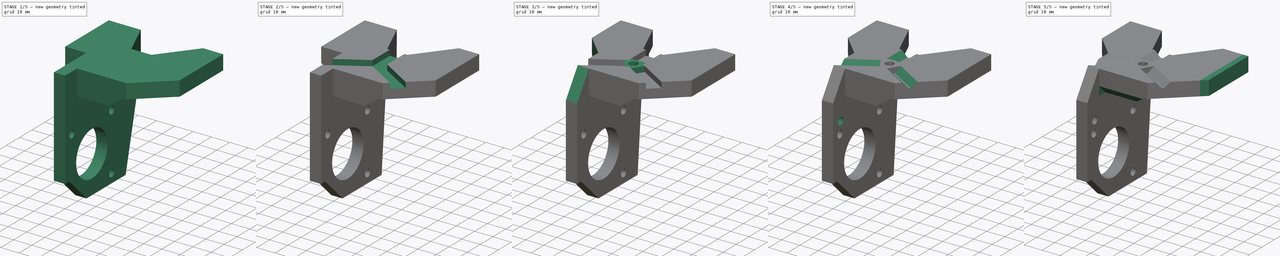
[diagram: build sequence overview — one tinted view per stage of 5, left to right]
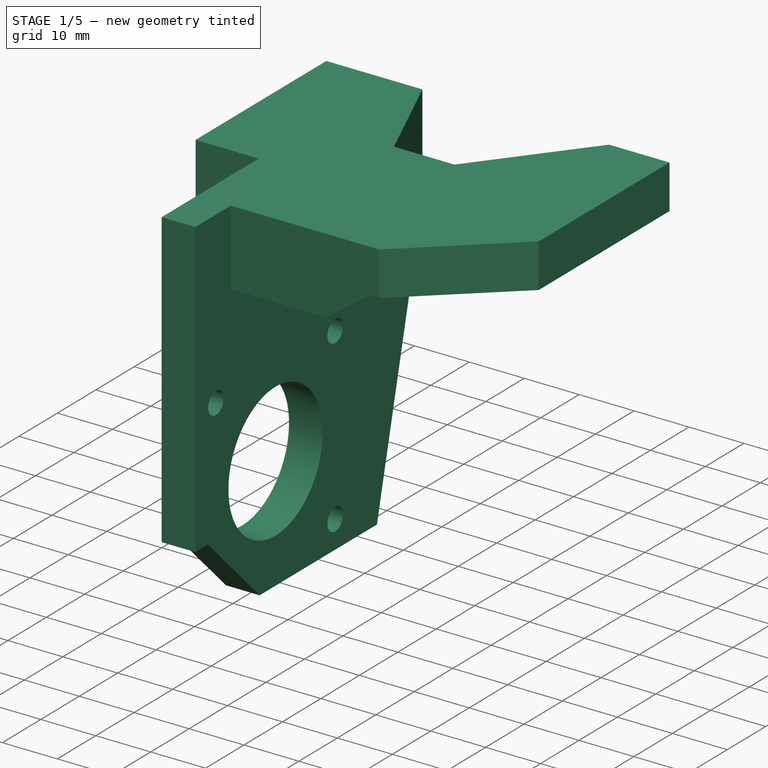
[diagram: stage 1 of 5 — iso view after this stage's code; geometry added in this stage tinted green]
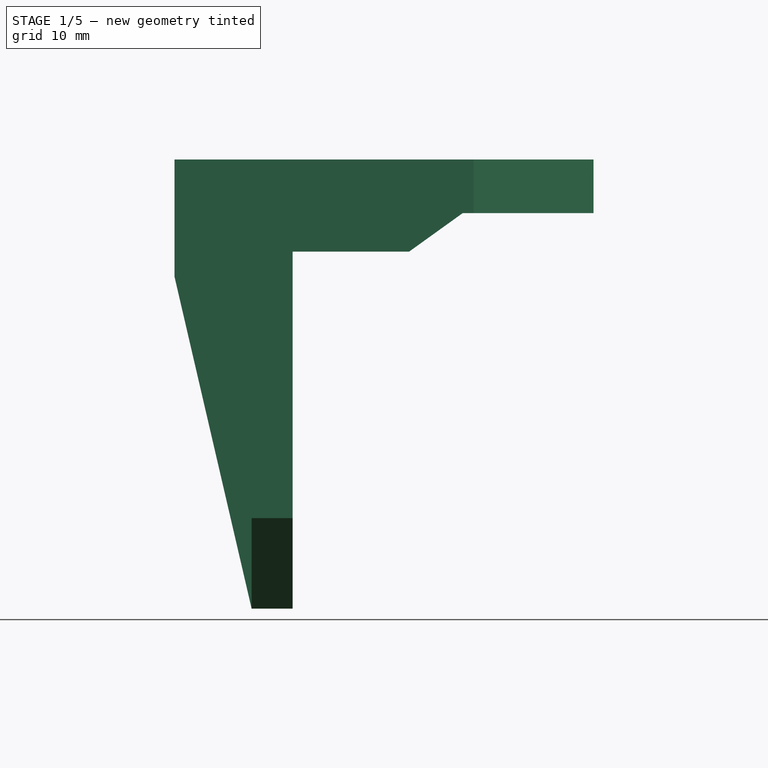
[diagram: stage 1 of 5 — front view after this stage's code; geometry added in this stage tinted green]
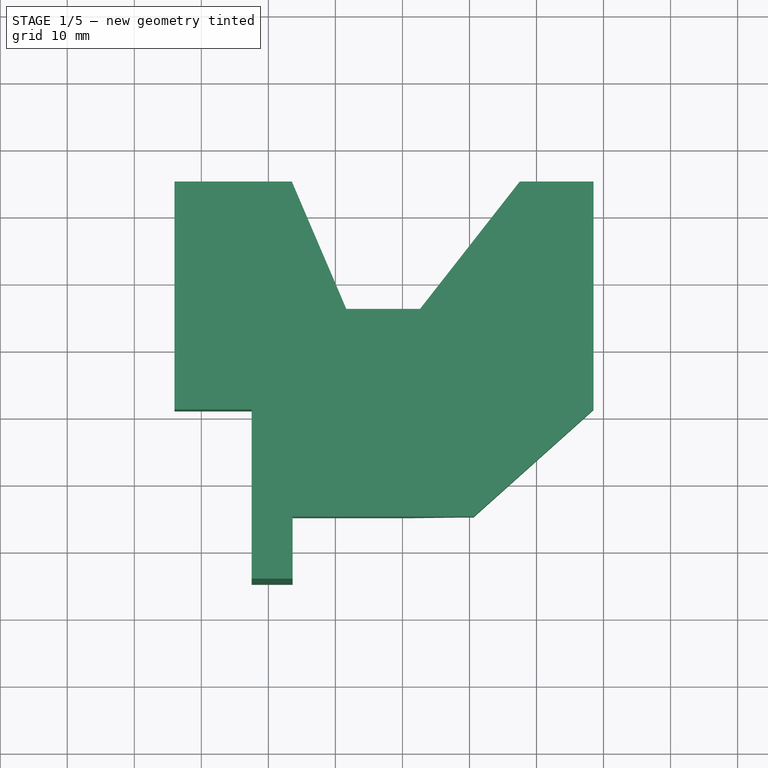
[diagram: stage 1 of 5 — top view after this stage's code; geometry added in this stage tinted green]
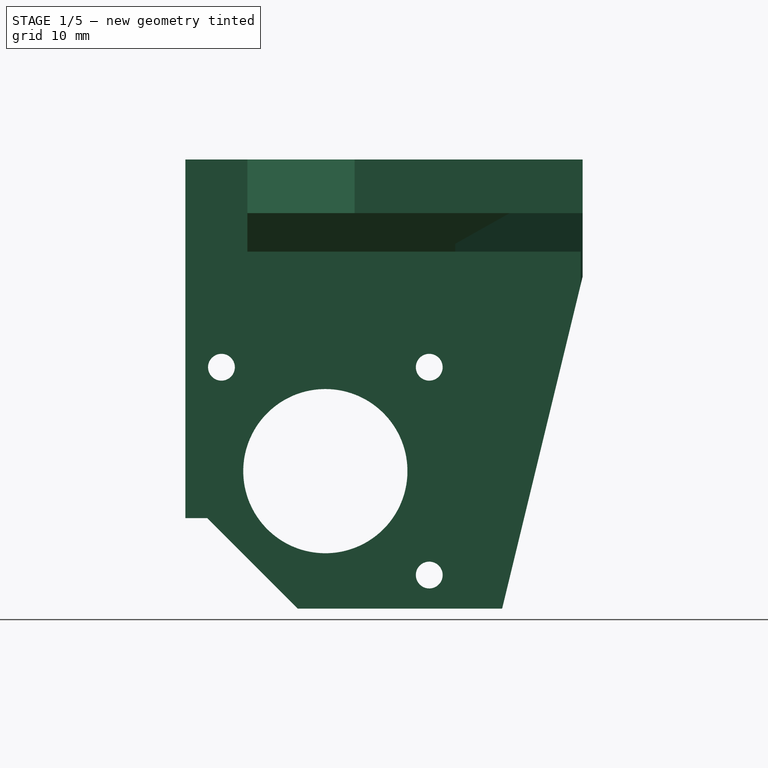
[diagram: stage 1 of 5 — right view after this stage's code; geometry added in this stage tinted green]
FCSTD DOCUMENT  (FreeCAD 0.17R11850 (Git))
Label: Beefy_extruder_mount_v2.2
License: All rights reserved
LicenseURL: http://en.wikipedia.org/wiki/All_rights_reserved
objects: Sketcher::SketchObject×15, PartDesign::Pocket×12, PartDesign::Pad×3, PartDesign::Chamfer×3, PartDesign::Fillet×3, PartDesign::Body×1, Part::Feature×1
note: 53 computed .brp shape members not serialized (recipe doc carries the construction recipe); baked Part::Feature solids carry a one-line shape summary decoded from their .brp

FEATURE [Sketcher::SketchObject] Sketch
  MapMode = 5
  Support = -> [XY_Plane]
  sketch-geometry (13):
    g0: LineSegment StartX=6 StartY=-25.75 StartZ=0 EndX=23.5 EndY=-25.75 EndZ=0
    g1: LineSegment StartX=23.5 StartY=-25.75 StartZ=0 EndX=31.625 EndY=-44.75 EndZ=0
    g2: LineSegment StartX=31.625 StartY=-44.75 StartZ=0 EndX=42.625 EndY=-44.75 EndZ=0
    g3: LineSegment StartX=42.625 StartY=-44.75 StartZ=0 EndX=57.5 EndY=-25.75 EndZ=0
    g4: LineSegment StartX=57.5 StartY=-25.75 StartZ=0 EndX=68.5 EndY=-25.75 EndZ=0
    g5: LineSegment StartX=68.5 StartY=-25.75 StartZ=0 EndX=68.5 EndY=-59.75 EndZ=0
    g6: LineSegment StartX=68.5 StartY=-59.75 StartZ=0 EndX=50.625 EndY=-75.75 EndZ=0
    g7: LineSegment StartX=50.625 StartY=-75.75 StartZ=0 EndX=23.625 EndY=-75.75 EndZ=0
    g8: LineSegment StartX=6 StartY=-59.75 StartZ=0 EndX=6 EndY=-25.75 EndZ=0
    g9: LineSegment StartX=17.5 StartY=-59.75 StartZ=0 EndX=6 EndY=-59.75 EndZ=0
    g10: LineSegment StartX=23.625 StartY=-75.75 StartZ=0 EndX=23.625 EndY=-85 EndZ=0
    g11: LineSegment StartX=23.625 StartY=-85 StartZ=0 EndX=17.5 EndY=-85 EndZ=0
    g12: LineSegment StartX=17.5 StartY=-85 StartZ=0 EndX=17.5 EndY=-59.75 EndZ=0
  constraints (39):
    c: Horizontal(g0)
    c: Coincident(g0,g1)
    c: Coincident(g1,g2)
    c: Horizontal(g2)
    c: Coincident(g2,g3)
    c: Coincident(g3,g4)
    c: Horizontal(g4)
    c: Coincident(g4,g5)
    c: Vertical(g5)
    c: Coincident(g5,g6)
    c: Coincident(g6,g7)
    c: Horizontal(g7)
    c: Vertical(g8)
    c: Coincident(g0,g8)
    c: DistanceX(g-1,g0) = 6
    c: DistanceY(g0,g-1) = 25.75
    c: DistanceX(g0,g0) = 17.5
    c: DistanceY(g0,g3) = 0
    c: DistanceX(g0,g3) = 34
    c: DistanceX(g2,g2) = 11
    c: DistanceY(g3,g3) = 19
    c: DistanceX(g2,g6) = 8
    c: DistanceX(g7,g1) = 8
    c: Equal(g5,g8)
    c: DistanceX(g4,g4) = 11
    c: Coincident(g8,g9)
    c: Horizontal(g9)
    c: DistanceY(g6,g6) = 16
    c: DistanceY(g5,g5) = 34
    c: Coincident(g7,g10)
    c: Coincident(g10,g11)
    c: Horizontal(g11)
    c: Coincident(g11,g12)
    c: Vertical(g12)
    c: Coincident(g12,g9)
    c: DistanceY(g10,g10) = 9.25
    c: DistanceX(g11,g11) = 6.125
    c: DistanceX(g9,g9) = 11.5
    c: Vertical(g10)
FEATURE [PartDesign::Pad] Pad
  Length = 67
  Length2 = 100
  Profile = -> Sketch
  Reversed = true
  Type = 0
FEATURE [Sketcher::SketchObject] Sketch001
  ExternalGeometry = -> [Pad]
  MapMode = 5
  Placement = pos=(6,0,0) rot=(0.57735,-0.57735,-0.57735;2.0944rad)
  Support = -> [Pad]
  sketch-geometry (19):
    g0: Circle CenterX=64.125 CenterY=-46.5 CenterZ=0 NormalX=0 NormalY=0 NormalZ=1 Radius=12.25
    g1: LineSegment StartX=25.75 StartY=-17.5 StartZ=0 EndX=37.75 EndY=-67 EndZ=0
    g2: LineSegment StartX=37.75 StartY=-67 StartZ=0 EndX=25.75 EndY=-67 EndZ=0
    g3: LineSegment StartX=25.75 StartY=-67 StartZ=0 EndX=25.75 EndY=-17.5 EndZ=0
    g4: LineSegment StartX=68.25 StartY=-67 StartZ=0 EndX=81.75 EndY=-53.5 EndZ=0
    g5: LineSegment StartX=81.75 StartY=-53.5 StartZ=0 EndX=85 EndY=-53.5 EndZ=0
    g6: LineSegment StartX=85 StartY=-53.5 StartZ=0 EndX=85 EndY=-67 EndZ=0
    g7: LineSegment StartX=85 StartY=-67 StartZ=0 EndX=68.25 EndY=-67 EndZ=0
    g8: LineSegment [constr] StartX=48.625 StartY=-31 StartZ=0 EndX=79.625 EndY=-31 EndZ=0
    g9: LineSegment [constr] StartX=79.625 StartY=-31 StartZ=0 EndX=79.625 EndY=-62 EndZ=0
    g10: LineSegment [constr] StartX=79.625 StartY=-62 StartZ=0 EndX=48.625 EndY=-62 EndZ=0
    g11: LineSegment [constr] StartX=48.625 StartY=-62 StartZ=0 EndX=48.625 EndY=-31 EndZ=0
    g12: LineSegment [constr] StartX=48.625 StartY=-31 StartZ=0 EndX=64.125 EndY=-31 EndZ=0
    g13: LineSegment [constr] StartX=64.125 StartY=-31 StartZ=0 EndX=64.125 EndY=-46.5 EndZ=0
    g14: LineSegment [constr] StartX=64.125 StartY=-46.5 StartZ=0 EndX=48.625 EndY=-46.5 EndZ=0
    g15: LineSegment [constr] StartX=48.625 StartY=-46.5 StartZ=0 EndX=48.625 EndY=-31 EndZ=0
    g16: Circle CenterX=48.625 CenterY=-31 CenterZ=0 NormalX=0 NormalY=0 NormalZ=1 Radius=2
    g17: Circle CenterX=79.625 CenterY=-31 CenterZ=0 NormalX=0 NormalY=0 NormalZ=1 Radius=2
    g18: Circle CenterX=48.625 CenterY=-62 CenterZ=0 NormalX=0 NormalY=0 NormalZ=1 Radius=2
  constraints (50):
    c: PointOnObject(g1,g-5)
    c: Coincident(g1,g2)
    c: Coincident(g2,g-5)
    c: Horizontal(g2)
    c: Coincident(g2,g3)
    c: Coincident(g3,g1)
    c: PointOnObject(g4,g-4)
    c: Coincident(g4,g5)
    c: PointOnObject(g5,g-3)
    c: Horizontal(g5)
    c: Coincident(g5,g6)
    c: Coincident(g6,g-4)
    c: Coincident(g6,g7)
    c: Coincident(g7,g4)
    c: DistanceX(g5,g5) = 3.25
    c: Angle(g4) = 0.785398
    c: DistanceY(g6,g6) = 13.5
    c: DistanceX(g0,g4) = 4.125
    c: DistanceY(g0,g4) = -20.5
    c: Radius(g0) = 12.25
    c: Coincident(g8,g9)
    c: Coincident(g9,g10)
    c: Coincident(g10,g11)
    c: Coincident(g11,g8)
    c: Horizontal(g8)
    c: Horizontal(g10)
    c: Vertical(g9)
    c: Vertical(g11)
    c: Coincident(g12,g13)
    c: Coincident(g13,g14)
    c: Coincident(g14,g15)
    c: Coincident(g15,g12)
    c: Horizontal(g12)
    c: Horizontal(g14)
    c: Vertical(g13)
    c: Vertical(g15)
    c: Coincident(g12,g8)
    c: Coincident(g13,g0)
    c: Equal(g13,g14)
    c: Equal(g8,g9)
    c: DistanceY(g13,g13) = 15.5
    c: DistanceX(g8,g8) = 31
    c: Coincident(g16,g8)
    c: Coincident(g17,g8)
    c: Coincident(g10,g18)
    c: Radius(g16) = 2
    c: Equal(g16,g17)
    c: Equal(g16,g18)
    c: DistanceY(g3,g3) = 49.5
    c: DistanceX(g2,g2) = 12
FEATURE [PartDesign::Pocket] Pocket
  BaseFeature = -> Pad
  Length = 5
  Profile = -> Sketch001
  Type = 1
FEATURE [Sketcher::SketchObject] Sketch002
  ExternalGeometry = -> [Pocket]
  MapMode = 5
  Placement = pos=(0,-25.75,0) rot=(0,0.707107,0.707107;3.14159rad)
  Support = -> [Pocket]
  sketch-geometry (9):
    g0: LineSegment StartX=-6 StartY=-17.5 StartZ=0 EndX=-17.5 EndY=-67 EndZ=0
    g1: LineSegment StartX=-17.5 StartY=-67 StartZ=0 EndX=-6 EndY=-67 EndZ=0
    g2: LineSegment StartX=-6 StartY=-67 StartZ=0 EndX=-6 EndY=-17.5 EndZ=0
    g3: LineSegment StartX=-68.5 StartY=-8 StartZ=0 EndX=-49 EndY=-8 EndZ=0
    g4: LineSegment StartX=-49 StartY=-8 StartZ=0 EndX=-41 EndY=-13.75 EndZ=0
    g5: LineSegment StartX=-41 StartY=-13.75 StartZ=0 EndX=-23.625 EndY=-13.75 EndZ=0
    g6: LineSegment StartX=-23.625 StartY=-13.75 StartZ=0 EndX=-23.625 EndY=-67 EndZ=0
    g7: LineSegment StartX=-23.625 StartY=-67 StartZ=0 EndX=-68.5 EndY=-67 EndZ=0
    g8: LineSegment StartX=-68.5 StartY=-67 StartZ=0 EndX=-68.5 EndY=-8 EndZ=0
  constraints (25):
    c: Coincident(g-4,g0)
    c: PointOnObject(g0,g-3)
    c: Coincident(g0,g1)
    c: Coincident(g1,g-4)
    c: Coincident(g1,g2)
    c: Coincident(g2,g0)
    c: DistanceX(g1,g1) = 11.5
    c: Horizontal(g3)
    c: Coincident(g3,g4)
    c: Coincident(g4,g5)
    c: Horizontal(g5)
    c: Coincident(g5,g6)
    c: PointOnObject(g6,g-3)
    c: Vertical(g6)
    c: Coincident(g6,g7)
    c: Horizontal(g7)
    c: Coincident(g7,g8)
    c: Coincident(g8,g3)
    c: Vertical(g8)
    c: PointOnObject(g3,g-5)
    c: DistanceY(g3,g-5) = 8
    c: DistanceX(g3,g3) = 19.5
    c: DistanceX(g4,g4) = 8
    c: DistanceY(g4,g4) = 5.75
    c: PointOnObject(g5,g-7)
FEATURE [PartDesign::Pocket] Pocket001
  BaseFeature = -> Pocket
  Length = 5
  Profile = -> Sketch002
  Type = 1
FEATURE [Sketcher::SketchObject] Sketch003
  ExternalGeometry = -> [Pocket001]
  MapMode = 5
  Placement = pos=(6,0,0) rot=(0.57735,-0.57735,-0.57735;2.0944rad)
  Support = -> [Pocket001]
  sketch-geometry (4):
    g0: LineSegment StartX=41.75 StartY=-67 StartZ=0 EndX=85 EndY=-67 EndZ=0
    g1: LineSegment StartX=85 StartY=-67 StartZ=0 EndX=85 EndY=-17.5 EndZ=0
    g2: LineSegment StartX=85 StartY=-17.5 StartZ=0 EndX=41.75 EndY=-17.5 EndZ=0
    g3: LineSegment StartX=41.75 StartY=-17.5 StartZ=0 EndX=41.75 EndY=-67 EndZ=0
  constraints (12):
    c: Coincident(g0,g1)
    c: Coincident(g1,g2)
    c: Coincident(g2,g3)
    c: Coincident(g3,g0)
    c: Horizontal(g0)
    c: Horizontal(g2)
    c: Vertical(g1)
    c: Vertical(g3)
    c: DistanceY(g1,g1) = 49.5
    c: DistanceX(g-5,g0) = 4
    c: PointOnObject(g-5,g0)
    c: PointOnObject(g1,g-6)
FEATURE [PartDesign::Pocket] Pocket002
  BaseFeature = -> Pocket001
  Length = 0
  Profile = -> Sketch003
  Type = 3
  UpToFace = -> Pocket001 [Face14]
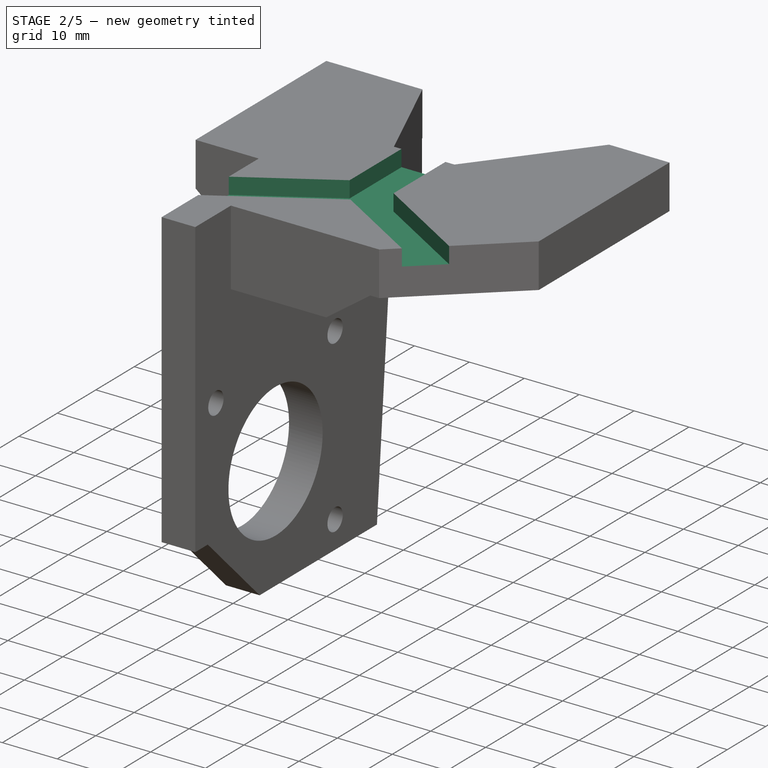
[diagram: stage 2 of 5 — iso view after this stage's code; geometry added in this stage tinted green]
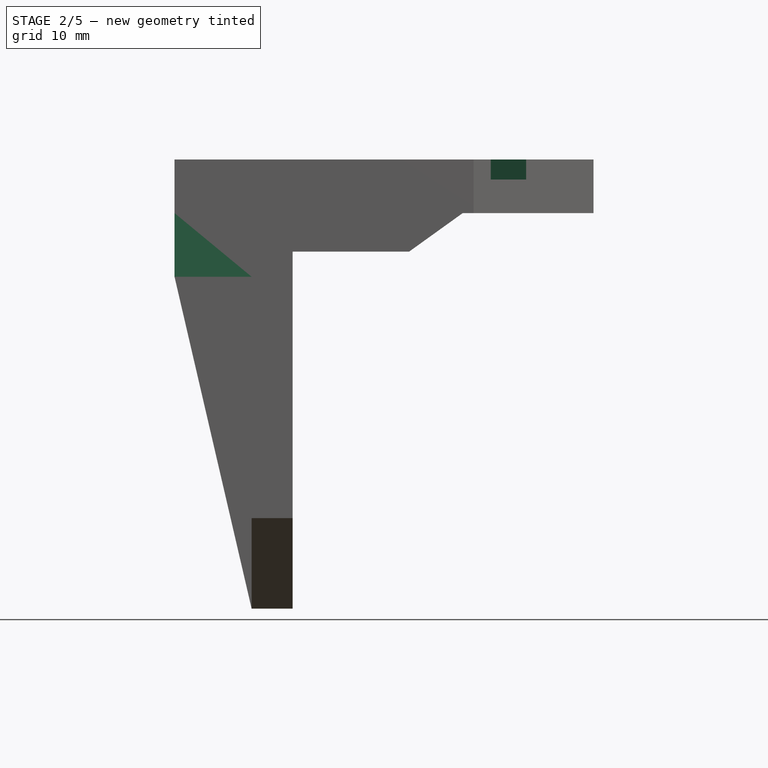
[diagram: stage 2 of 5 — front view after this stage's code; geometry added in this stage tinted green]
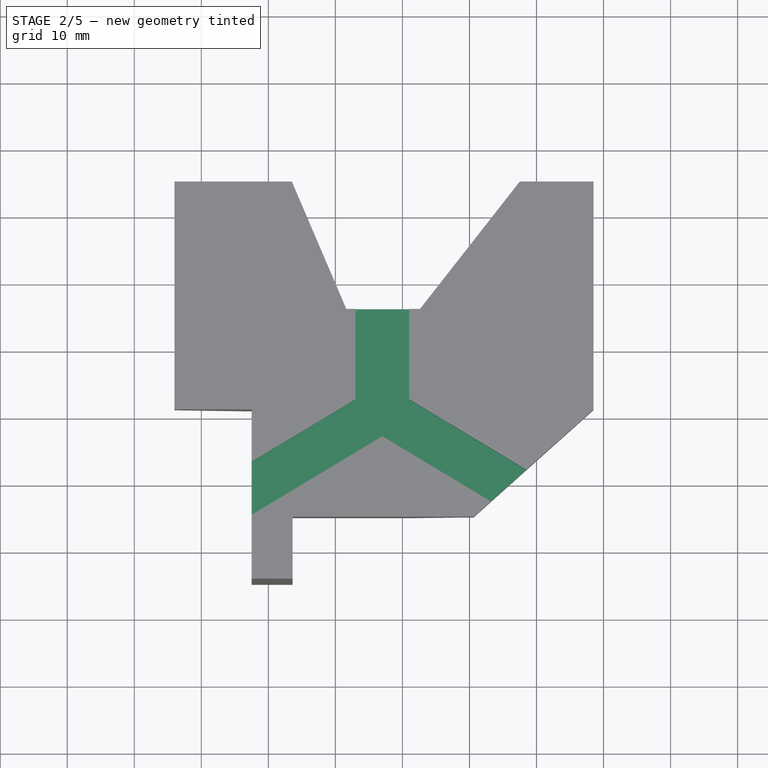
[diagram: stage 2 of 5 — top view after this stage's code; geometry added in this stage tinted green]
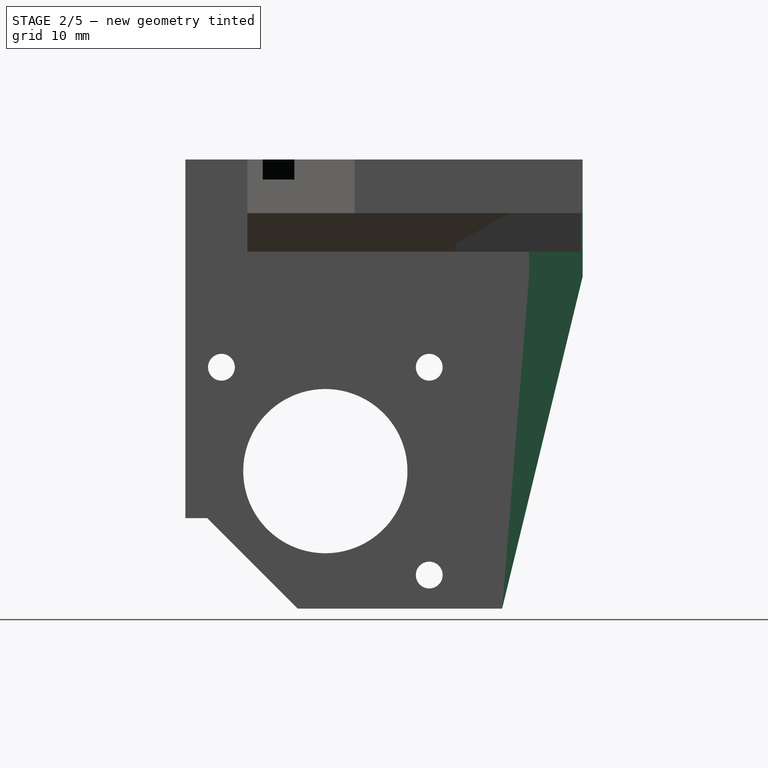
[diagram: stage 2 of 5 — right view after this stage's code; geometry added in this stage tinted green]
FEATURE [Sketcher::SketchObject] Sketch005
  ExternalGeometry = -> [Pocket002]
  MapMode = 5
  sketch-geometry (9):
    g0: LineSegment StartX=33 StartY=-44.75 StartZ=0 EndX=33 EndY=-58.25 EndZ=0
    g1: LineSegment StartX=33 StartY=-58.25 StartZ=0 EndX=11 EndY=-71.4689 EndZ=0
    g2: LineSegment StartX=33 StartY=-44.75 StartZ=0 EndX=41 EndY=-44.75 EndZ=0
    g3: LineSegment StartX=41 StartY=-44.75 StartZ=0 EndX=41 EndY=-58.25 EndZ=0
    g4: LineSegment StartX=41 StartY=-58.25 StartZ=0 EndX=63 EndY=-71.4689 EndZ=0
    g5: LineSegment StartX=63 StartY=-71.4689 StartZ=0 EndX=59.5108 EndY=-77.2759 EndZ=0
    g6: LineSegment StartX=59.5108 StartY=-77.2759 StartZ=0 EndX=37 EndY=-63.75 EndZ=0
    g7: LineSegment StartX=37 StartY=-63.75 StartZ=0 EndX=14.4892 EndY=-77.2759 EndZ=0
    g8: LineSegment StartX=14.4892 StartY=-77.2759 StartZ=0 EndX=11 EndY=-71.4689 EndZ=0
  constraints (27):
    c: Vertical(g0)
    c: Coincident(g0,g1)
    c: Angle(g-1,g1) = 0.541052
    c: Horizontal(g2)
    c: Coincident(g2,g3)
    c: Vertical(g3)
    c: Coincident(g3,g4)
    c: Coincident(g4,g5)
    c: Coincident(g5,g6)
    c: Coincident(g6,g7)
    c: Coincident(g7,g8)
    c: Coincident(g8,g1)
    c: Parallel(g1,g7)
    c: Angle(g4) = -0.541052
    c: Parallel(g4,g6)
    c: Equal(g7,g6)
    c: DistanceX(g6,g2) = 4
    c: DistanceX(g2,g2) = 8
    c: Coincident(g0,g2)
    c: Perpendicular(g5,g4)
    c: Perpendicular(g8,g7)
    c: DistanceY(g0,g0) = 13.5
    c: DistanceY(g0,g3) = 0
    c: DistanceY(g6,g3) = 5.5
    c: DistanceX(g4,g4) = 22
    c: DistanceX(g2,g-3) = 1.625
    c: PointOnObject(g0,g-3)
FEATURE [PartDesign::Pocket] Pocket003
  BaseFeature = -> Pocket002
  Length = 3
  Profile = -> Sketch005
  Type = 0
FEATURE [Sketcher::SketchObject] Sketch006
  ExternalGeometry = -> [Pocket003]
  MapMode = 5
  Placement = pos=(0,-59.75,0) rot=(1,0,0;1.5708rad)
  Support = -> [Pocket003]
  sketch-geometry (3):
    g0: LineSegment StartX=6 StartY=-8 StartZ=0 EndX=17.5 EndY=-17.5 EndZ=0
    g1: LineSegment StartX=17.5 StartY=-17.5 StartZ=0 EndX=6 EndY=-17.5 EndZ=0
    g2: LineSegment StartX=6 StartY=-17.5 StartZ=0 EndX=6 EndY=-8 EndZ=0
  constraints (3):
    c: Coincident(g0,g1)
    c: Coincident(g1,g2)
    c: Coincident(g2,g0)
FEATURE [PartDesign::Pocket] Pocket004
  BaseFeature = -> Pocket003
  Length = 18
  Profile = -> Sketch006
  Type = 0
FEATURE [Sketcher::SketchObject] Sketch007
  ExternalGeometry = -> [Pocket004]
  MapMode = 5
  Placement = pos=(23.625,0,0) rot=(0.57735,0.57735,0.57735;2.0944rad)
  Support = -> [Pocket004]
  sketch-geometry (5):
    g0: LineSegment StartX=-25.75 StartY=-8 StartZ=0 EndX=-33.75 EndY=-8 EndZ=0
    g1: LineSegment StartX=-37.75 StartY=-67 StartZ=0 EndX=-25.75 EndY=-17.5 EndZ=0
    g2: LineSegment StartX=-25.75 StartY=-17.5 StartZ=0 EndX=-25.75 EndY=-8 EndZ=0
    g3: LineSegment StartX=-33.75 StartY=-8 StartZ=0 EndX=-33.75 EndY=-17.5 EndZ=0
    g4: LineSegment StartX=-33.75 StartY=-17.5 StartZ=0 EndX=-37.75 EndY=-67 EndZ=0
  constraints (13):
    c: Horizontal(g0)
    c: DistanceX(g0,g0) = -8
    c: DistanceY(g-4,g0) = 9.5
    c: Coincident(g1,g-4)
    c: Coincident(g1,g2)
    c: Coincident(g2,g0)
    c: PointOnObject(g0,g-3)
    c: Coincident(g0,g3)
    c: Vertical(g3)
    c: Coincident(g3,g4)
    c: Equal(g3,g2)
    c: Coincident(g1,g4)
    c: Coincident(g1,g-4)
FEATURE [PartDesign::Pocket] Pocket005
  BaseFeature = -> Pocket004
  Length = 5
  Profile = -> Sketch007
  Type = 0
FEATURE [Sketcher::SketchObject] Sketch010
  ExternalGeometry = -> [Pocket005]
  MapMode = 5
  Placement = pos=(0,-25.75,0) rot=(0,0.707107,0.707107;3.14159rad)
  sketch-geometry (2):
    g0: Circle CenterX=-65 CenterY=-3.75 CenterZ=0 NormalX=0 NormalY=0 NormalZ=1 Radius=2.25
    g1: Circle CenterX=-17 CenterY=-3.75 CenterZ=0 NormalX=0 NormalY=0 NormalZ=1 Radius=2.25
  constraints (6):
    c: DistanceX(g0,g1) = 48
    c: DistanceY(g0,g1) = 0
    c: Radius(g1) = 2.25
    c: Equal(g1,g0)
    c: DistanceX(g1,g-3) = 11
    c: DistanceY(g1,g-3) = 3.75
FEATURE [PartDesign::Pocket] Pocket006
  BaseFeature = -> Pocket005
  Length = 7
  Profile = -> Sketch010
  Type = 0
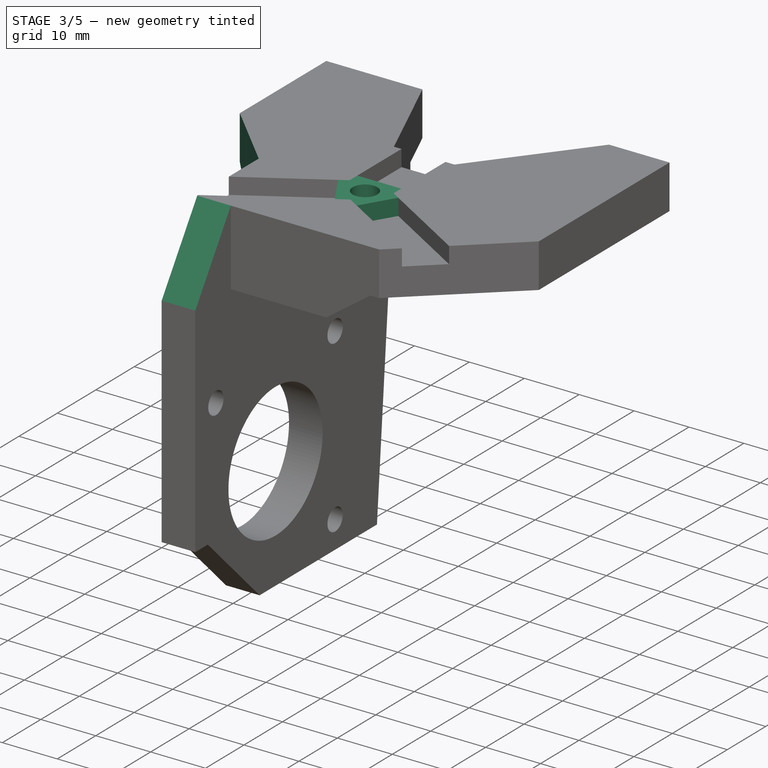
[diagram: stage 3 of 5 — iso view after this stage's code; geometry added in this stage tinted green]
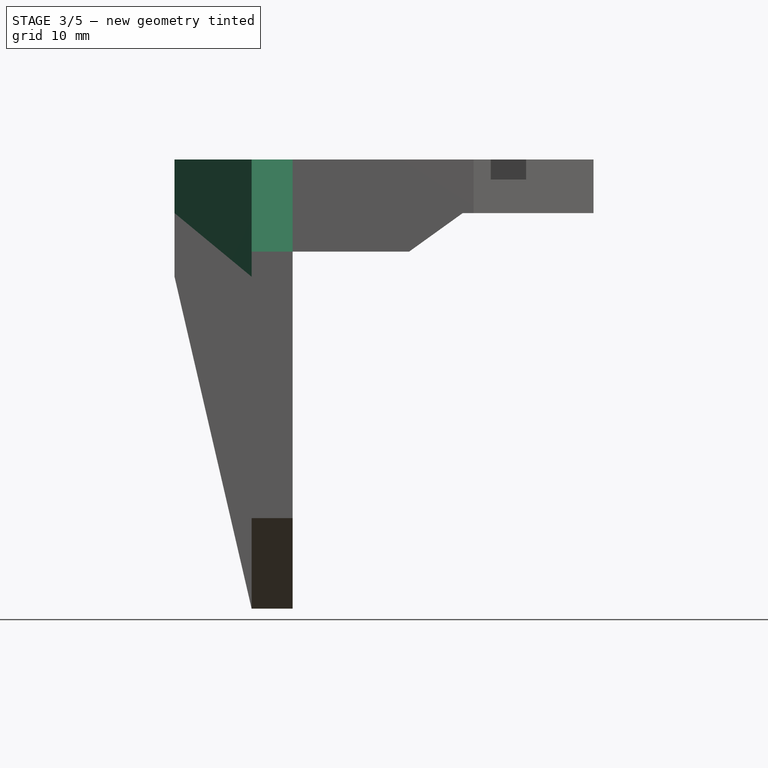
[diagram: stage 3 of 5 — front view after this stage's code; geometry added in this stage tinted green]
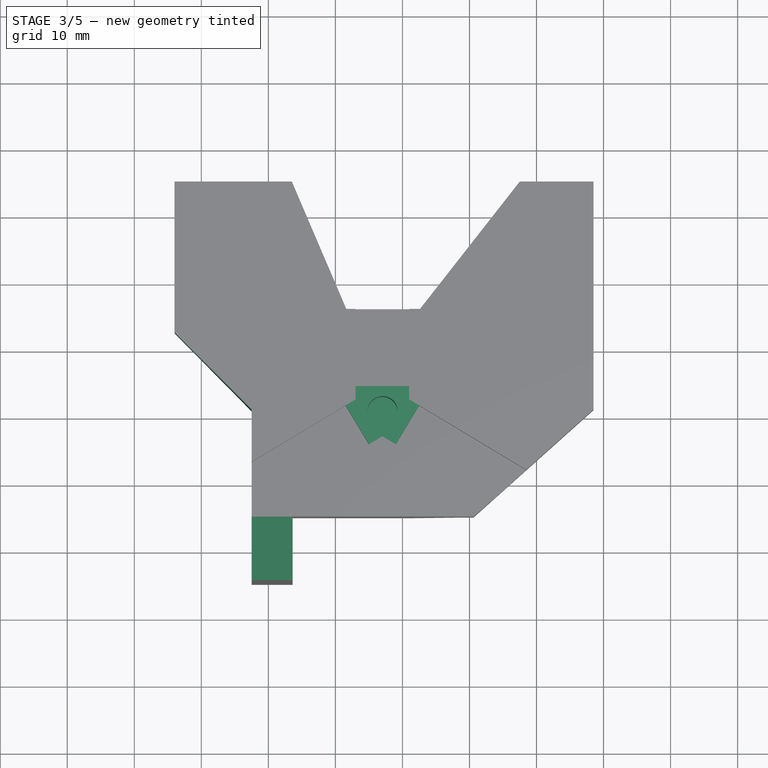
[diagram: stage 3 of 5 — top view after this stage's code; geometry added in this stage tinted green]
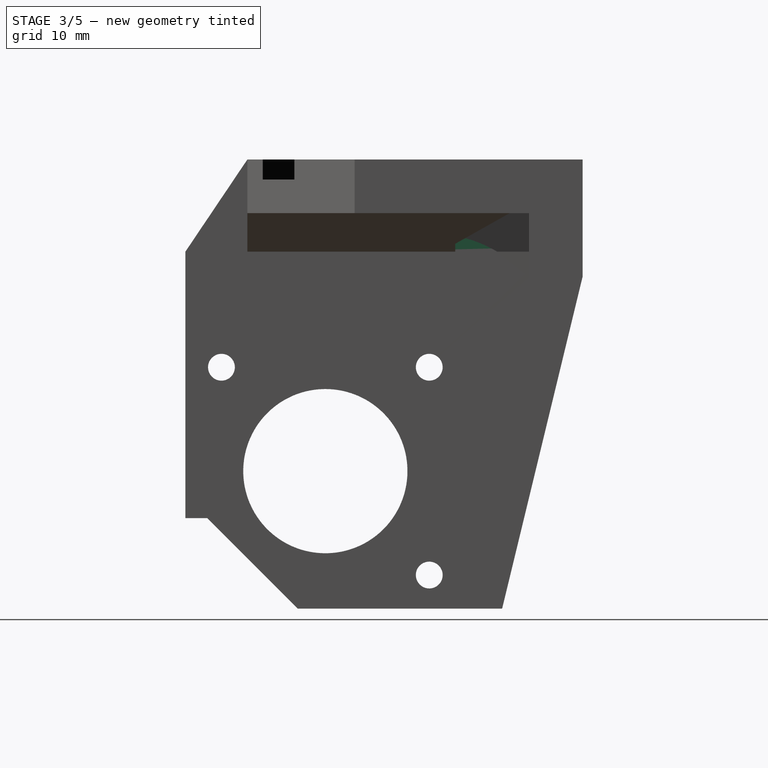
[diagram: stage 3 of 5 — right view after this stage's code; geometry added in this stage tinted green]
FEATURE [Sketcher::SketchObject] Sketch011
  ExternalGeometry = -> [Pocket006]
  MapMode = 5
  Placement = pos=(23.625,0,0) rot=(0.57735,0.57735,0.57735;2.0944rad)
  Support = -> [Pocket006]
  sketch-geometry (6):
    g0: ArcOfCircle CenterX=-48.6 CenterY=-31 CenterZ=0 NormalX=0 NormalY=0 NormalZ=1 Radius=20 StartAngle=1.04019 EndAngle=2.1014
    g1: LineSegment StartX=-58.7211 StartY=-13.75 StartZ=0 EndX=-38.4789 EndY=-13.75 EndZ=0
    g2: LineSegment StartX=-26.0423 StartY=-8 StartZ=0 EndX=-33.75 EndY=-8 EndZ=0
    g3: LineSegment StartX=-33.75 StartY=-8 StartZ=0 EndX=-33.75 EndY=-13.75 EndZ=0
    g4: LineSegment StartX=-33.75 StartY=-13.75 StartZ=0 EndX=-26.0423 EndY=-13.75 EndZ=0
    g5: LineSegment StartX=-26.0423 StartY=-13.75 StartZ=0 EndX=-26.0423 EndY=-8 EndZ=0
  constraints (17):
    c: PointOnObject(g0,g-3)
    c: PointOnObject(g0,g-3)
    c: DistanceX(g0) = -48.6
    c: DistanceY(g0) = -31
    c: Coincident(g1,g0)
    c: Coincident(g1,g0)
    c: Radius(g0) = 20
    c: Coincident(g2,g3)
    c: Coincident(g3,g4)
    c: Coincident(g4,g5)
    c: Coincident(g5,g2)
    c: Horizontal(g2)
    c: Horizontal(g4)
    c: Vertical(g3)
    c: Vertical(g5)
    c: Coincident(g2,g-4)
    c: Coincident(g3,g-5)
FEATURE [PartDesign::Pocket] Pocket007
  BaseFeature = -> Pocket006
  Length = 14
  Profile = -> Sketch011
  Reversed = true
  Type = 0
FEATURE [Sketcher::SketchObject] Sketch012
  ExternalGeometry = -> [Pocket007]
  MapMode = 5
  Placement = pos=(23.625,0,0) rot=(0.57735,0.57735,0.57735;2.0944rad)
  Support = -> [Pocket007]
  sketch-geometry (3):
    g0: LineSegment StartX=-75.75 StartY=0 StartZ=0 EndX=-85 EndY=-13.75 EndZ=0
    g1: LineSegment StartX=-85 StartY=-13.75 StartZ=0 EndX=-85 EndY=0 EndZ=0
    g2: LineSegment StartX=-85 StartY=0 StartZ=0 EndX=-75.75 EndY=0 EndZ=0
  constraints (6):
    c: Coincident(g-4,g0)
    c: Coincident(g0,g-3)
    c: Coincident(g0,g1)
    c: Coincident(g1,g-4)
    c: Coincident(g1,g2)
    c: Coincident(g2,g0)
FEATURE [PartDesign::Pocket] Pocket008
  BaseFeature = -> Pocket007
  Length = 5
  Profile = -> Sketch012
  Type = 1
FEATURE [Sketcher::SketchObject] Sketch013
  MapMode = 5
  Placement = pos=(0,0,-3) rot=(0,0,1;0rad)
  Support = -> [Pocket008]
  sketch-geometry (1):
    g0: Circle CenterX=37.032 CenterY=-60 CenterZ=0 NormalX=0 NormalY=0 NormalZ=1 Radius=2.25
  constraints (3):
    c: DistanceX(g0) = 37.032
    c: DistanceY(g0) = -60
    c: Radius(g0) = 2.25
FEATURE [PartDesign::Pocket] Pocket009
  BaseFeature = -> Pocket008
  Length = 7
  Profile = -> Sketch013
  Type = 0
FEATURE [Sketcher::SketchObject] Sketch014
  ExternalGeometry = -> [Pocket009]
  MapMode = 5
  Placement = pos=(0,0,-3) rot=(0,0,1;0rad)
  Support = -> [Pocket009]
  sketch-geometry (10):
    g0: Circle CenterX=37.032 CenterY=-60 CenterZ=0 NormalX=0 NormalY=0 NormalZ=1 Radius=2.25
    g1: LineSegment StartX=33 StartY=-56.25 StartZ=0 EndX=41 EndY=-56.25 EndZ=0
    g2: LineSegment StartX=41 StartY=-56.25 StartZ=0 EndX=41 EndY=-58.25 EndZ=0
    g3: LineSegment StartX=41 StartY=-58.25 StartZ=0 EndX=42.4892 EndY=-59.1448 EndZ=0
    g4: LineSegment StartX=42.4892 StartY=-59.1448 StartZ=0 EndX=39 EndY=-64.9517 EndZ=0
    g5: LineSegment StartX=39 StartY=-64.9517 StartZ=0 EndX=37 EndY=-63.75 EndZ=0
    g6: LineSegment StartX=37 StartY=-63.75 StartZ=0 EndX=35 EndY=-64.9517 EndZ=0
    g7: LineSegment StartX=35 StartY=-64.9517 StartZ=0 EndX=31.5108 EndY=-59.1448 EndZ=0
    g8: LineSegment StartX=31.5108 StartY=-59.1448 StartZ=0 EndX=33 EndY=-58.25 EndZ=0
    g9: LineSegment StartX=33 StartY=-58.25 StartZ=0 EndX=33 EndY=-56.25 EndZ=0
  constraints (26):
    c: Coincident(g0,g-3)
    c: Equal(g-3,g0)
    c: PointOnObject(g1,g-5)
    c: PointOnObject(g1,g-6)
    c: Horizontal(g1)
    c: Coincident(g1,g2)
    c: Coincident(g2,g-7)
    c: Coincident(g2,g3)
    c: PointOnObject(g3,g-7)
    c: Coincident(g3,g4)
    c: PointOnObject(g4,g-8)
    c: Coincident(g4,g5)
    c: Coincident(g5,g-9)
    c: Coincident(g5,g6)
    c: PointOnObject(g6,g-9)
    c: Coincident(g6,g7)
    c: PointOnObject(g7,g-4)
    c: Coincident(g7,g8)
    c: Coincident(g8,g-5)
    c: Coincident(g8,g9)
    c: Coincident(g9,g1)
    c: Perpendicular(g8,g7)
    c: Perpendicular(g3,g4)
    c: Equal(g5,g6)
    c: DistanceX(g5,g5) = 2
    c: DistanceY(g2,g2) = 2
FEATURE [PartDesign::Pad] Pad001
  BaseFeature = -> Pocket009
  Length = 3
  Length2 = 100
  Profile = -> Sketch014
  Type = 0
FEATURE [Sketcher::SketchObject] Sketch015
  ExternalGeometry = -> [Pad001]
  MapMode = 5
  Support = -> [Pad001]
  sketch-geometry (3):
    g0: LineSegment StartX=17.5 StartY=-59.75 StartZ=0 EndX=6 EndY=-48.25 EndZ=0
    g1: LineSegment StartX=6 StartY=-48.25 StartZ=0 EndX=6 EndY=-59.75 EndZ=0
    g2: LineSegment StartX=6 StartY=-59.75 StartZ=0 EndX=17.5 EndY=-59.75 EndZ=0
  constraints (7):
    c: Coincident(g-4,g0)
    c: PointOnObject(g0,g-3)
    c: Coincident(g0,g1)
    c: Coincident(g1,g2)
    c: Coincident(g2,g0)
    c: Coincident(g1,g-4)
    c: Angle(g0) = 2.35619
FEATURE [PartDesign::Pocket] Pocket010
  BaseFeature = -> Pad001
  Length = 5
  Profile = -> Sketch015
  Type = 1
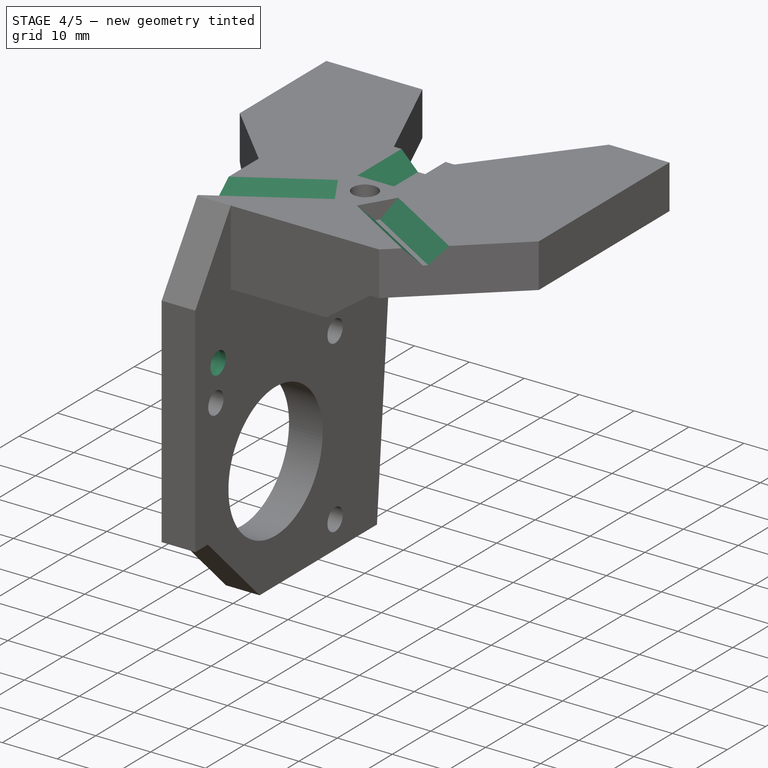
[diagram: stage 4 of 5 — iso view after this stage's code; geometry added in this stage tinted green]
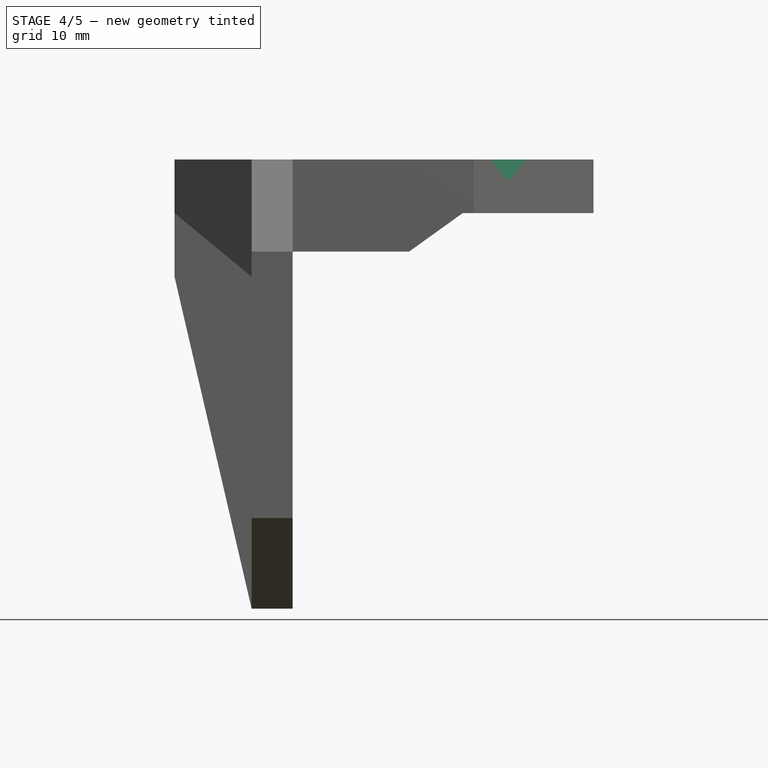
[diagram: stage 4 of 5 — front view after this stage's code; geometry added in this stage tinted green]
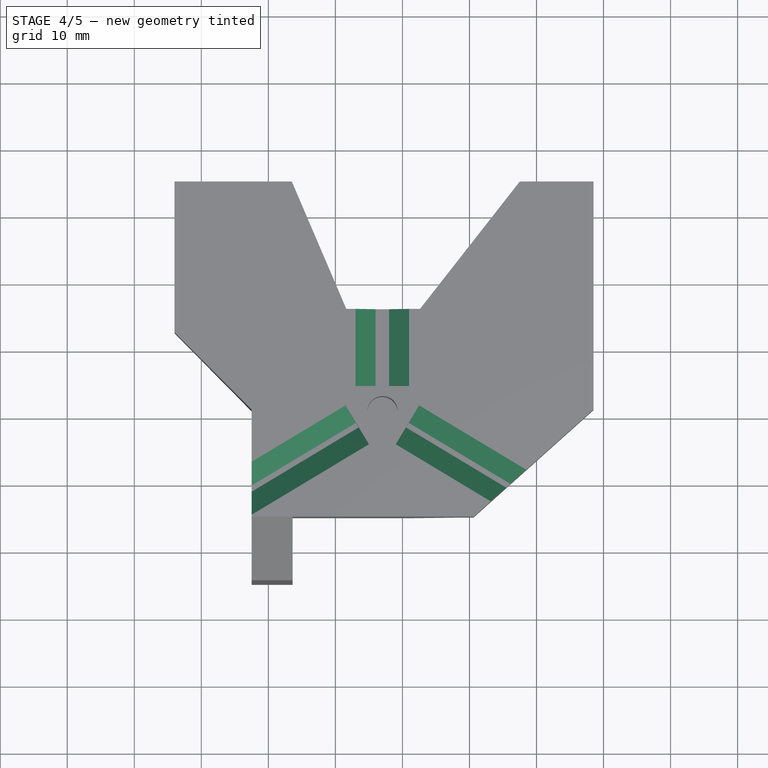
[diagram: stage 4 of 5 — top view after this stage's code; geometry added in this stage tinted green]
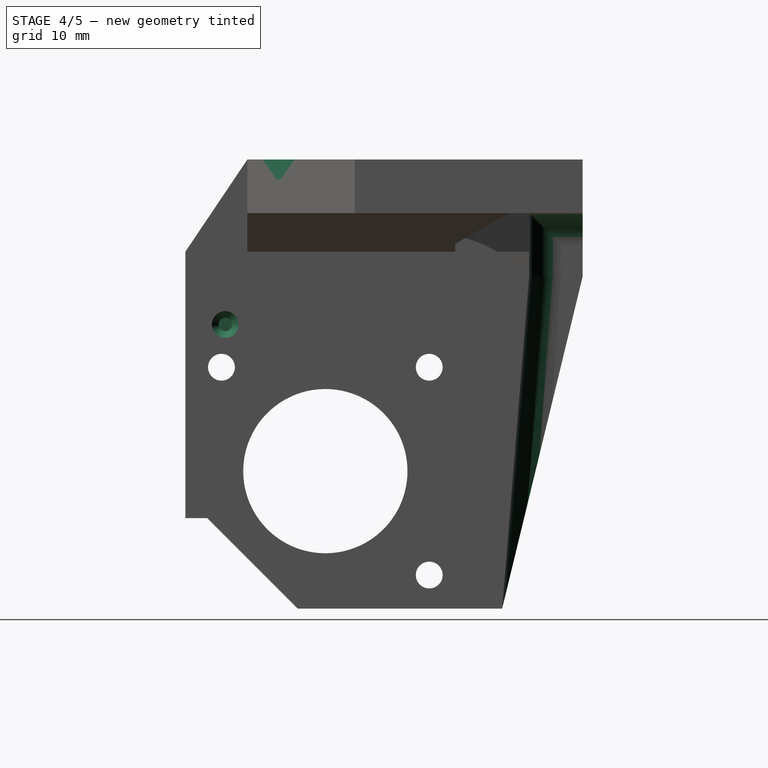
[diagram: stage 4 of 5 — right view after this stage's code; geometry added in this stage tinted green]
FEATURE [Sketcher::SketchObject] Sketch016
  ExternalGeometry = -> [Pocket010]
  MapMode = 5
  Placement = pos=(23.625,0,0) rot=(0.57735,0.57735,0.57735;2.0944rad)
  Support = -> [Pocket010]
  sketch-geometry (1):
    g0: Circle CenterX=-79.05 CenterY=-24.625 CenterZ=0 NormalX=0 NormalY=0 NormalZ=1 Radius=2
  constraints (3):
    c: DistanceX(g-3,g0) = 5.95
    c: DistanceY(g-3,g0) = -10.875
    c: Radius(g0) = 2
FEATURE [PartDesign::Pocket] Pocket011
  BaseFeature = -> Pocket010
  Length = 2
  Profile = -> Sketch016
  Type = 0
FEATURE [PartDesign::Chamfer] Chamfer
  Base = -> Pocket011 [Edge171]
  BaseFeature = -> Pocket011
  Size = 1
FEATURE [PartDesign::Chamfer] Chamfer001
  Base = -> Chamfer [Edge164,Edge127,Edge154,Edge142,Edge124,Edge165]
  BaseFeature = -> Chamfer
  Size = 2.99
FEATURE [PartDesign::Fillet] Fillet
  Base = -> Chamfer001 [Edge183,Edge184]
  BaseFeature = -> Chamfer001
  Radius = 4.99
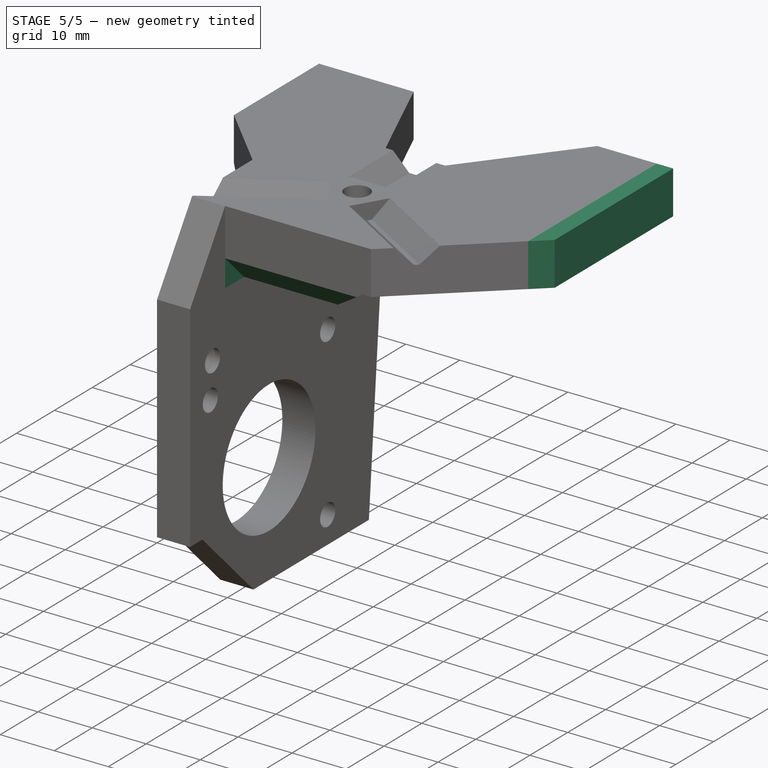
[diagram: stage 5 of 5 — iso view after this stage's code; geometry added in this stage tinted green]
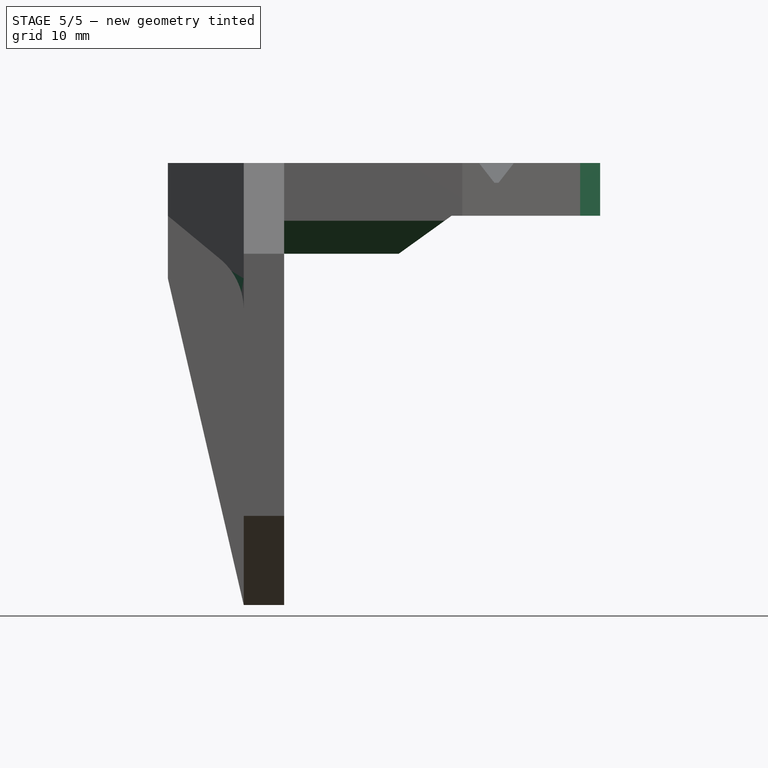
[diagram: stage 5 of 5 — front view after this stage's code; geometry added in this stage tinted green]
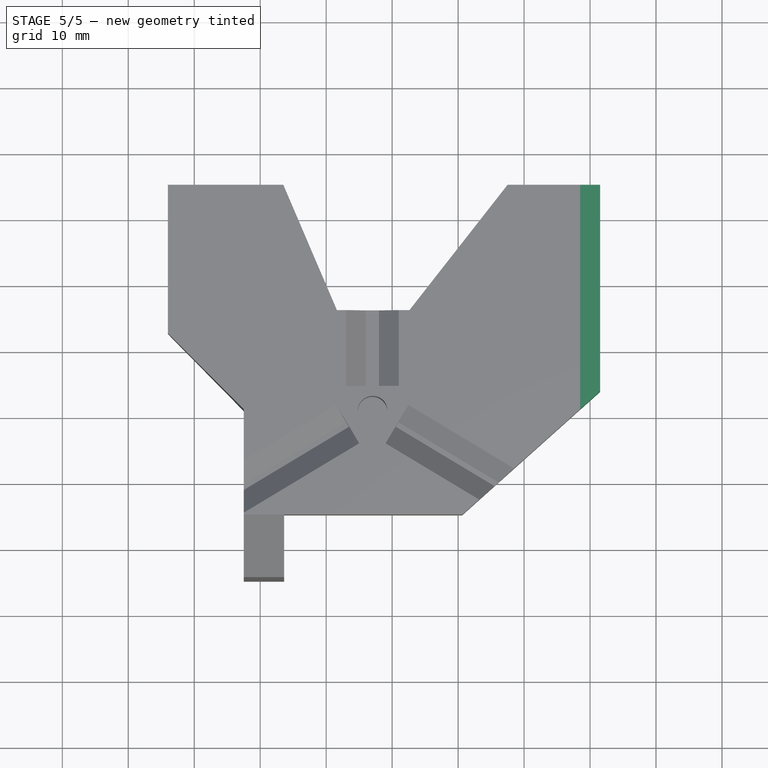
[diagram: stage 5 of 5 — top view after this stage's code; geometry added in this stage tinted green]
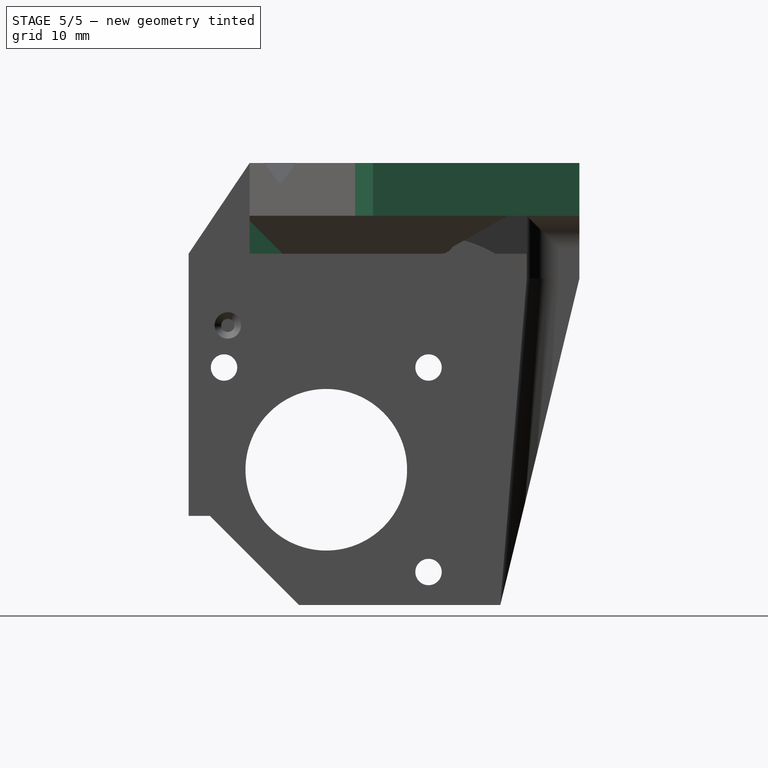
[diagram: stage 5 of 5 — right view after this stage's code; geometry added in this stage tinted green]
FEATURE [PartDesign::Fillet] Fillet001
  Base = -> Fillet [Edge65,Edge116]
  BaseFeature = -> Fillet
  Radius = 2
FEATURE [PartDesign::Chamfer] Chamfer002
  Base = -> Fillet001 [Edge6]
  BaseFeature = -> Fillet001
  Size = 5
FEATURE [PartDesign::Fillet] Fillet002
  Base = -> Chamfer002 [Edge152]
  BaseFeature = -> Chamfer002
  Radius = 10
FEATURE [Sketcher::SketchObject] Sketch017
  ExternalGeometry = -> [Fillet002]
  MapMode = 5
  Placement = pos=(0,0,-8) rot=(1,0,0;3.14159rad)
  Support = -> [Fillet002]
  sketch-geometry (4):
    g0: LineSegment StartX=68.5 StartY=25.75 StartZ=0 EndX=71.53 EndY=25.75 EndZ=0
    g1: LineSegment StartX=71.53 StartY=25.75 StartZ=0 EndX=71.53 EndY=57.0378 EndZ=0
    g2: LineSegment StartX=71.53 StartY=57.0378 StartZ=0 EndX=68.5 EndY=59.75 EndZ=0
    g3: LineSegment StartX=68.5 StartY=59.75 StartZ=0 EndX=68.5 EndY=25.75 EndZ=0
  constraints (10):
    c: Coincident(g-4,g0)
    c: Horizontal(g0)
    c: Coincident(g0,g1)
    c: Vertical(g1)
    c: Coincident(g1,g2)
    c: Coincident(g2,g-4)
    c: Tangent(g-3,g2)
    c: Distance(g0) = 3.03
    c: Coincident(g3,g2)
    c: Coincident(g3,g0)
FEATURE [PartDesign::Pad] Pad002
  BaseFeature = -> Fillet002
  Length = 8
  Length2 = 100
  Profile = -> Sketch017
  Reversed = true
  Type = 0
FEATURE [PartDesign::Body] Body
  Group = -> [Sketch,Pad,Sketch001,Pocket,Sketch002,Pocket001,Sketch003,Sketch005,Pocket002,Pocket003,Sketch006,Pocket004,Sketch007,Pocket005,Sketch010,Pocket006,Sketch011,Pocket007,Sketch012,Pocket008,Sketch013,Pocket009,Sketch014,Pad001,Sketch015,Pocket010,Sketch016,Pocket011,Chamfer,Chamfer001,Fillet,Fillet001,Chamfer002,Fillet002,Sketch017,Pad002]
  Origin = -> Origin
  Tip = -> Pad002
FEATURE [Part::Feature] Pad002001  label="Pad003"
  shape: bbox 65.53 x 59.25 x 67.4 mm, 70 faces (baked)
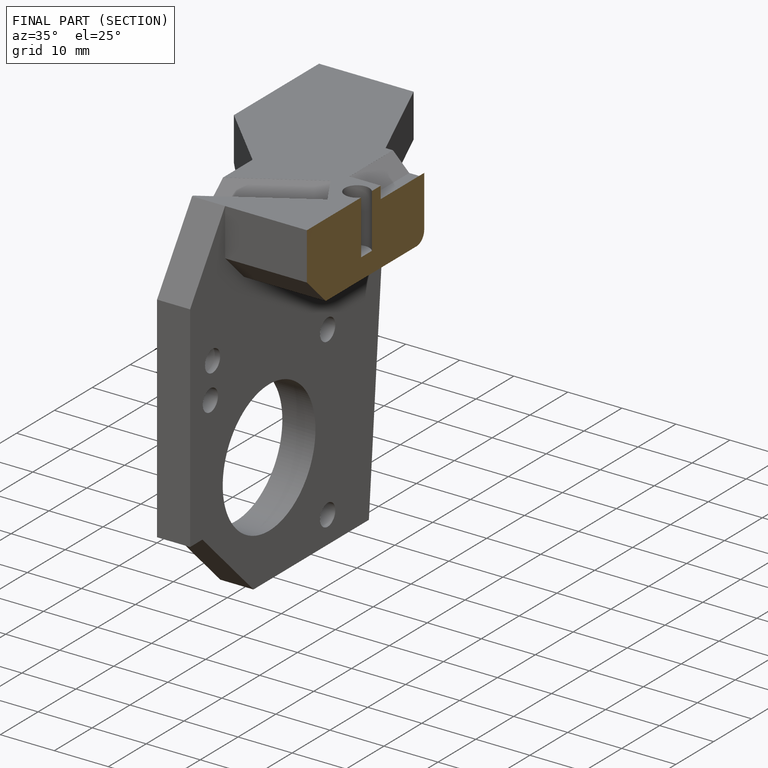
[diagram: finished part — half-section view (interior)]
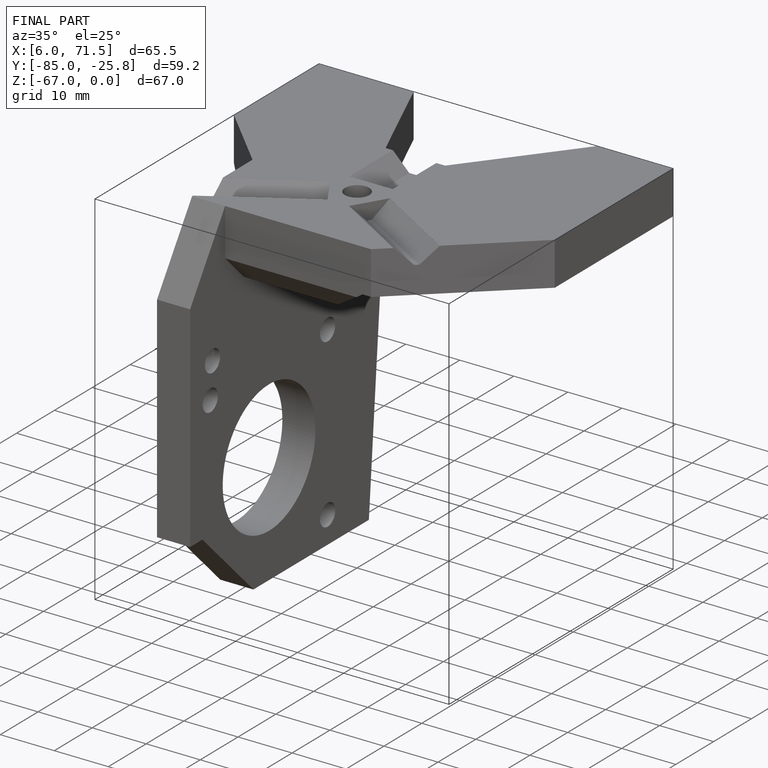
[diagram: finished part — iso view with bounding-box wireframe]
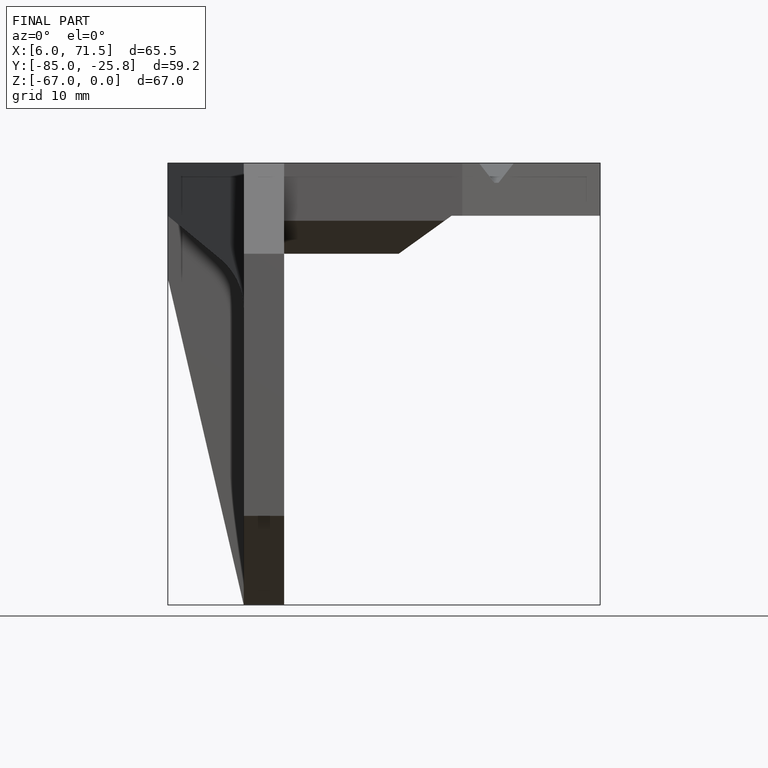
[diagram: finished part — front view with bounding-box wireframe]
